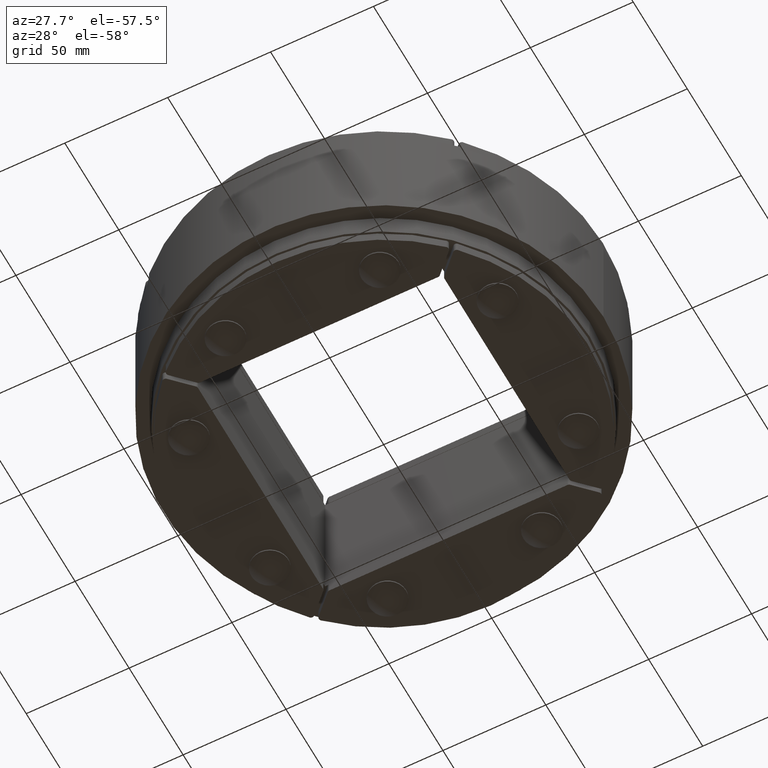
[diagram: clean part render]
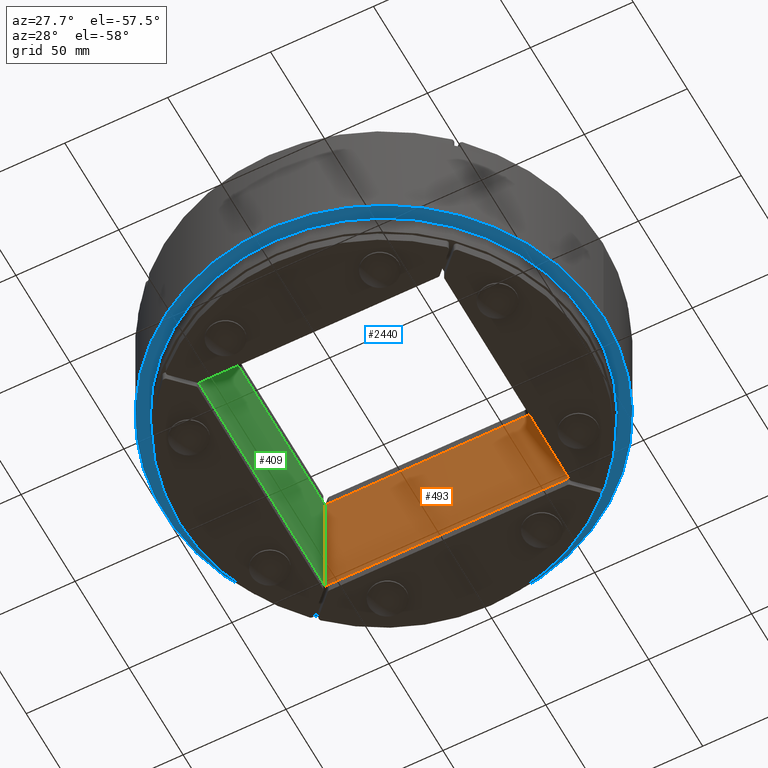
[diagram: same view with three faces highlighted in distinct colors, each labeled with its STEP entity id]
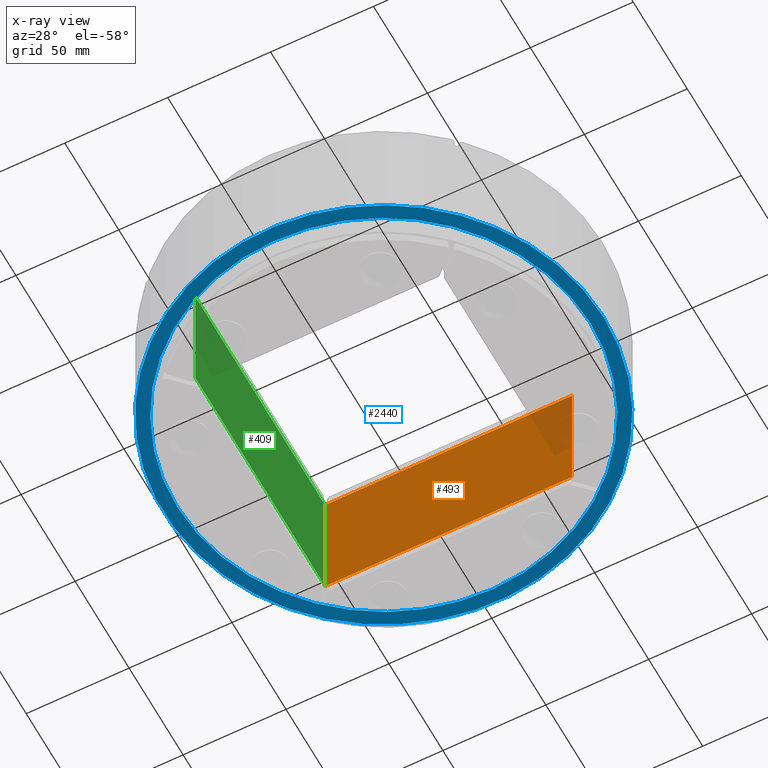
[diagram: x-ray of the same camera — body ghosted, the three highlighted faces saturated]
A machine part, auxiliary view with three faces highlighted in distinct colors.
The next image is the same camera in x-ray (body ghosted, the three faces saturated) — at least one of them is partly hidden behind the body in this view.
Their STEP definitions:

[orange] entity #493 — the highlighted planar face has unit normal (0, 1, 0).
#375=CARTESIAN_POINT('',(-60.0,60.0,-65.0));
#376=VERTEX_POINT('',#375);
#385=CARTESIAN_POINT('',(-60.0,60.0,0.0));
#386=VERTEX_POINT('',#385);
#387=CARTESIAN_POINT('',(-60.0,60.0,0.0));
#388=DIRECTION('',(0.0,0.0,-1.0));
#389=VECTOR('',#388,65.0);
#390=LINE('',#387,#389);
#391=EDGE_CURVE('',#386,#376,#390,.T.);
#446=CARTESIAN_POINT('',(60.0,60.0,-65.0));
#447=VERTEX_POINT('',#446);
#455=CARTESIAN_POINT('',(60.0,60.0,0.0));
#456=VERTEX_POINT('',#455);
#463=CARTESIAN_POINT('',(60.0,60.0,0.0));
#464=DIRECTION('',(0.0,0.0,-1.0));
#465=VECTOR('',#464,65.0);
#466=LINE('',#463,#465);
#467=EDGE_CURVE('',#456,#447,#466,.T.);
#472=CARTESIAN_POINT('',(-60.0,60.0,0.0));
#473=DIRECTION('',(0.0,1.0,0.0));
#474=DIRECTION('',(1.0,0.0,0.0));
#475=AXIS2_PLACEMENT_3D('',#472,#473,#474);
#476=PLANE('',#475);
#477=CARTESIAN_POINT('',(60.0,60.0,-65.0));
#478=DIRECTION('',(-1.0,0.0,0.0));
#479=VECTOR('',#478,120.0);
#480=LINE('',#477,#479);
#481=EDGE_CURVE('',#447,#376,#480,.T.);
#482=ORIENTED_EDGE('',*,*,#481,.F.);
#483=ORIENTED_EDGE('',*,*,#467,.F.);
#484=CARTESIAN_POINT('',(-60.0,60.0,0.0));
#485=DIRECTION('',(1.0,0.0,0.0));
#486=VECTOR('',#485,120.0);
#487=LINE('',#484,#486);
#488=EDGE_CURVE('',#386,#456,#487,.T.);
#489=ORIENTED_EDGE('',*,*,#488,.F.);
#490=ORIENTED_EDGE('',*,*,#391,.T.);
#491=EDGE_LOOP('',(#482,#483,#489,#490));
#492=FACE_OUTER_BOUND('',#491,.T.);
#493=ADVANCED_FACE('',(#492),#476,.F.);

[blue] entity #2440 — the highlighted planar face has unit normal (0, 0, 1).
#2378=CARTESIAN_POINT('',(-100.5,-1.230770E-014,-55.0));
#2379=VERTEX_POINT('',#2378);
#2380=CARTESIAN_POINT('',(0.0,0.0,-55.0));
#2381=DIRECTION('',(0.0,0.0,1.0));
#2382=DIRECTION('',(1.0,0.0,0.0));
#2383=AXIS2_PLACEMENT_3D('',#2380,#2381,#2382);
#2384=CIRCLE('',#2383,100.5);
#2385=EDGE_CURVE('',#2379,#2379,#2384,.T.);
#2406=CARTESIAN_POINT('',(107.00000000000001,1.310372E-014,-55.0));
#2407=VERTEX_POINT('',#2406);
#2408=CARTESIAN_POINT('',(0.0,0.0,-55.0));
#2409=DIRECTION('',(0.0,0.0,-1.0));
#2410=DIRECTION('',(-1.0,0.0,0.0));
#2411=AXIS2_PLACEMENT_3D('',#2408,#2409,#2410);
#2412=CIRCLE('',#2411,107.00000000000001);
#2413=EDGE_CURVE('',#2407,#2407,#2412,.T.);
#2429=CARTESIAN_POINT('',(-1.091977E-015,0.0,-55.0));
#2430=DIRECTION('',(0.0,0.0,1.0));
#2431=DIRECTION('',(1.0,0.0,0.0));
#2432=AXIS2_PLACEMENT_3D('',#2429,#2430,#2431);
#2433=PLANE('',#2432);
#2434=ORIENTED_EDGE('',*,*,#2413,.T.);
#2435=EDGE_LOOP('',(#2434));
#2436=FACE_OUTER_BOUND('',#2435,.T.);
#2437=ORIENTED_EDGE('',*,*,#2385,.T.);
#2438=EDGE_LOOP('',(#2437));
#2439=FACE_BOUND('',#2438,.T.);
#2440=ADVANCED_FACE('',(#2436,#2439),#2433,.F.);

[green] entity #409 — the highlighted planar face has unit normal (-1, 0, 0).
#370=CARTESIAN_POINT('',(-60.0,-60.0,0.0));
#371=DIRECTION('',(-1.0,0.0,0.0));
#372=DIRECTION('',(0.0,1.0,0.0));
#373=AXIS2_PLACEMENT_3D('',#370,#371,#372);
#374=PLANE('',#373);
#375=CARTESIAN_POINT('',(-60.0,60.0,-65.0));
#376=VERTEX_POINT('',#375);
#377=CARTESIAN_POINT('',(-60.0,-60.0,-65.0));
#378=VERTEX_POINT('',#377);
#379=CARTESIAN_POINT('',(-60.0,60.0,-65.0));
#380=DIRECTION('',(0.0,-1.0,0.0));
#381=VECTOR('',#380,120.0);
#382=LINE('',#379,#381);
#383=EDGE_CURVE('',#376,#378,#382,.T.);
#384=ORIENTED_EDGE('',*,*,#383,.F.);
#385=CARTESIAN_POINT('',(-60.0,60.0,0.0));
#386=VERTEX_POINT('',#385);
#387=CARTESIAN_POINT('',(-60.0,60.0,0.0));
#388=DIRECTION('',(0.0,0.0,-1.0));
#389=VECTOR('',#388,65.0);
#390=LINE('',#387,#389);
#391=EDGE_CURVE('',#386,#376,#390,.T.);
#392=ORIENTED_EDGE('',*,*,#391,.F.);
#393=CARTESIAN_POINT('',(-60.0,-60.0,0.0));
#394=VERTEX_POINT('',#393);
#395=CARTESIAN_POINT('',(-60.0,-60.0,0.0));
#396=DIRECTION('',(0.0,1.0,0.0));
#397=VECTOR('',#396,120.0);
#398=LINE('',#395,#397);
#399=EDGE_CURVE('',#394,#386,#398,.T.);
#400=ORIENTED_EDGE('',*,*,#399,.F.);
#401=CARTESIAN_POINT('',(-60.0,-60.0,0.0));
#402=DIRECTION('',(0.0,0.0,-1.0));
#403=VECTOR('',#402,65.0);
#404=LINE('',#401,#403);
#405=EDGE_CURVE('',#394,#378,#404,.T.);
#406=ORIENTED_EDGE('',*,*,#405,.T.);
#407=EDGE_LOOP('',(#384,#392,#400,#406));
#408=FACE_OUTER_BOUND('',#407,.T.);
#409=ADVANCED_FACE('',(#408),#374,.F.);